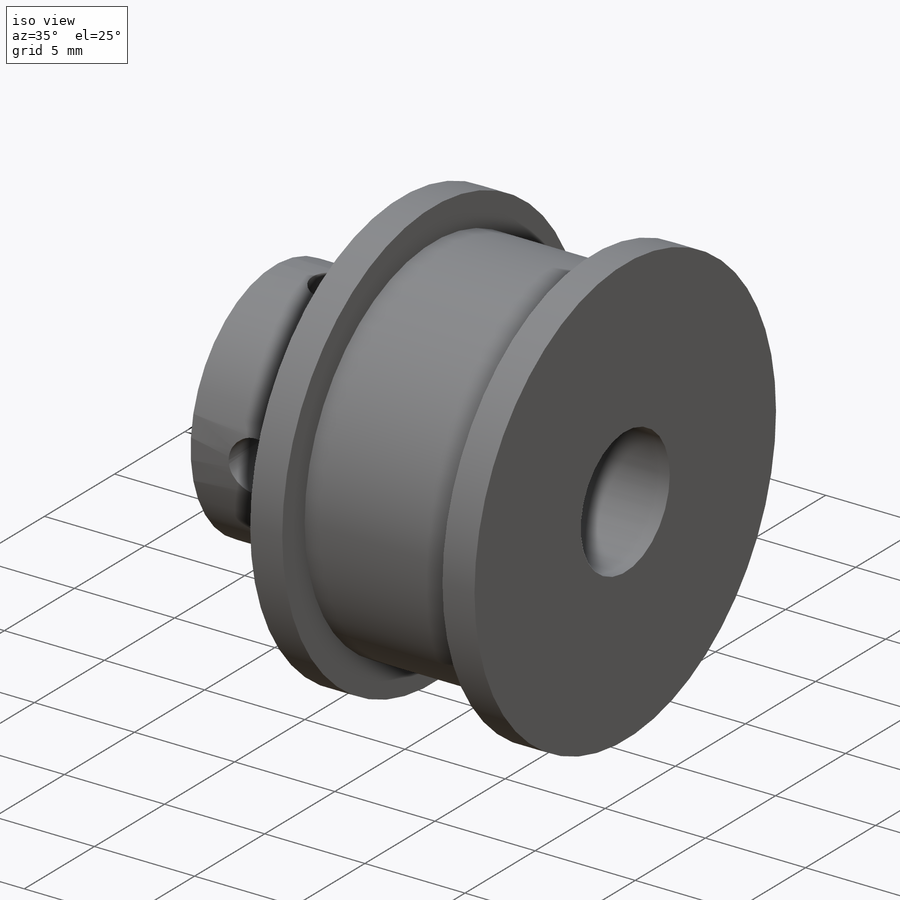
[diagram: iso view]
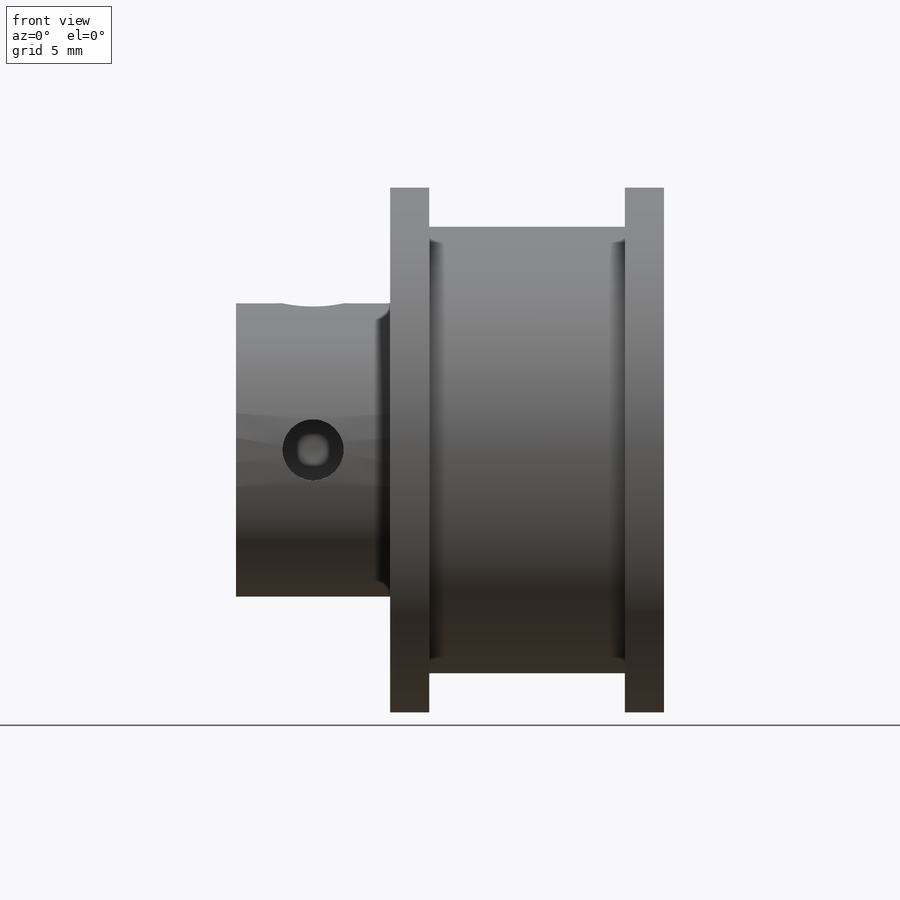
[diagram: front view]
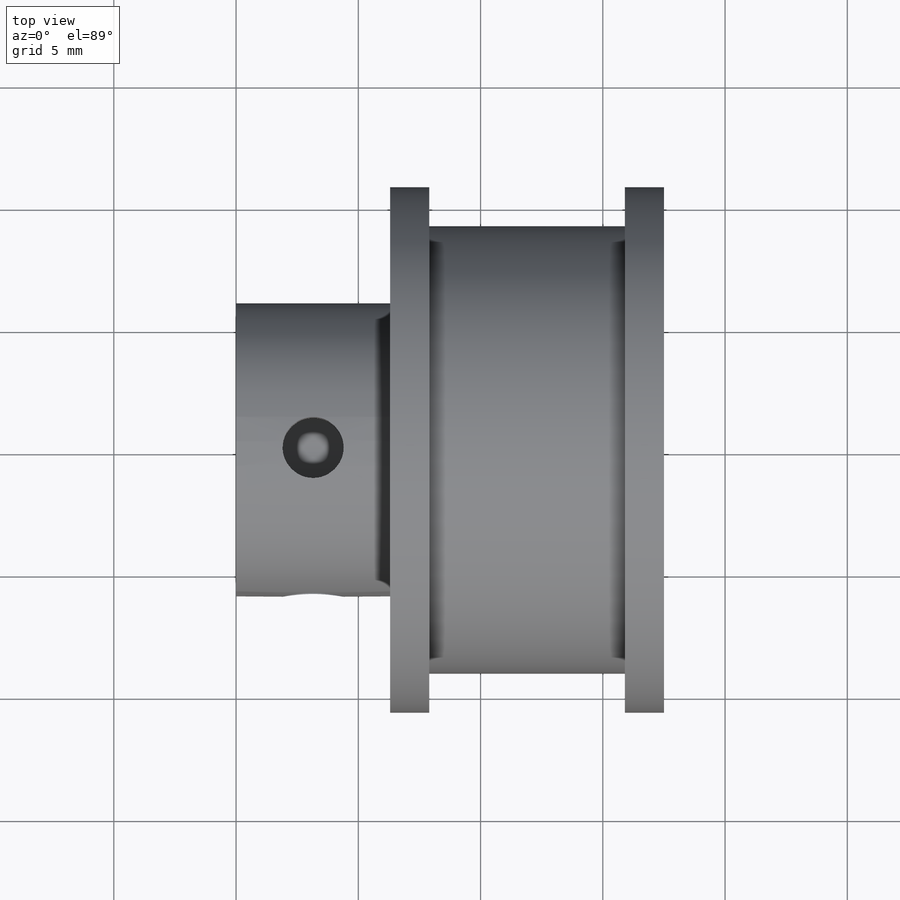
[diagram: top view]
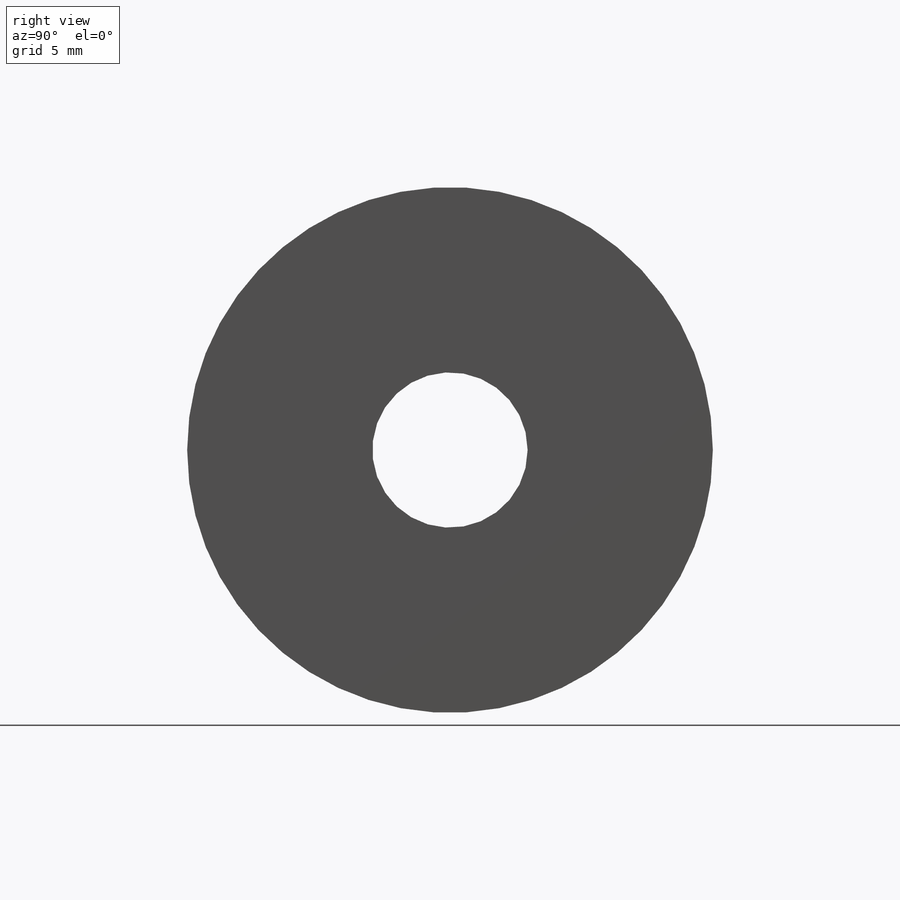
[diagram: right view]
SOLIDWORKS PART (.sldprt)
format: sldprt  version: not decoded by parser v0  size: 234,496 bytes
history: native  units: mm
features: sketch x5, hole x2, material x1, revolve x1 (+13 scaffold rows collapsed)
feature tree (22):
  scaffold x13  (default folders/planes/origin — collapsed)
  material  "6061-T6 (SS)"
  sketch  "Sketch1"  dims[c1.D1=6.35mm c1.D2=21.5mm c1.D3=18.3mm c1.D4=6.0mm c1.D5=17.5mm c1.D6=1.6mm c2.D4=11.2mm c2.D7=12.0mm]
  revolve  "Revolve1"  Angle=360deg
  hole  "M3x0.5 Tapped Hole1"  Diameter=2.5mm Depth=10.75mm
  sketch  "Sketch3"
  sketch  "Sketch2"  dims[hole-wizard template sketch: 60 standard entries collapsed; hole parameters kept: c18.Thru Tap Drill Depth=10.75mm]
  hole  "M3x0.5 Tapped Hole2"  Diameter=2.5mm Depth=10.75mm
  sketch  "Sketch5"
  sketch  "Sketch4"  dims[hole-wizard template sketch: 60 standard entries collapsed; hole parameters kept: c18.Thru Tap Drill Depth=10.75mm]
decode coverage: 6 of 8 modeling features carry decoded parameters
note: ~ marks probable driven/reference dimensions
note: suppression state not decoded; provenance and decode notes live in map.json
